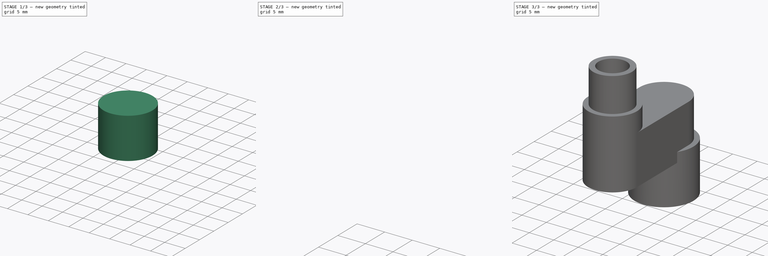
[diagram: build sequence overview — one tinted view per stage of 3, left to right]
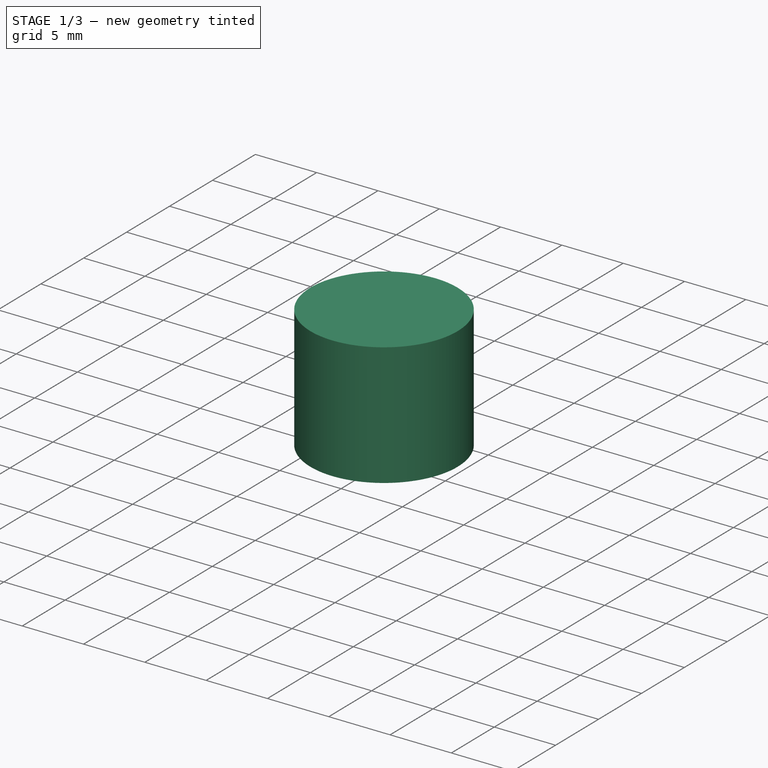
[diagram: stage 1 of 3 — iso view after this stage's code; geometry added in this stage tinted green]
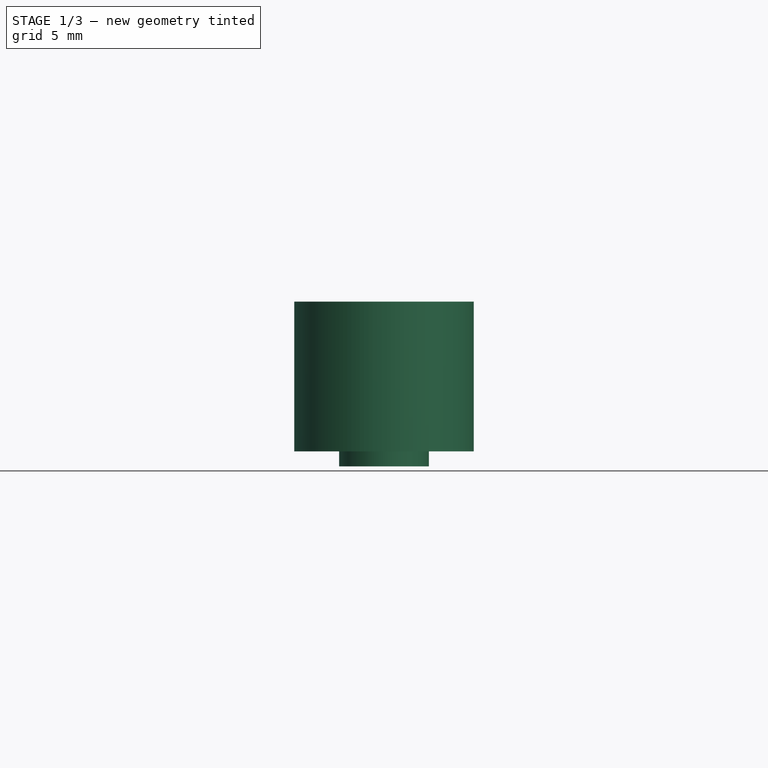
[diagram: stage 1 of 3 — front view after this stage's code; geometry added in this stage tinted green]
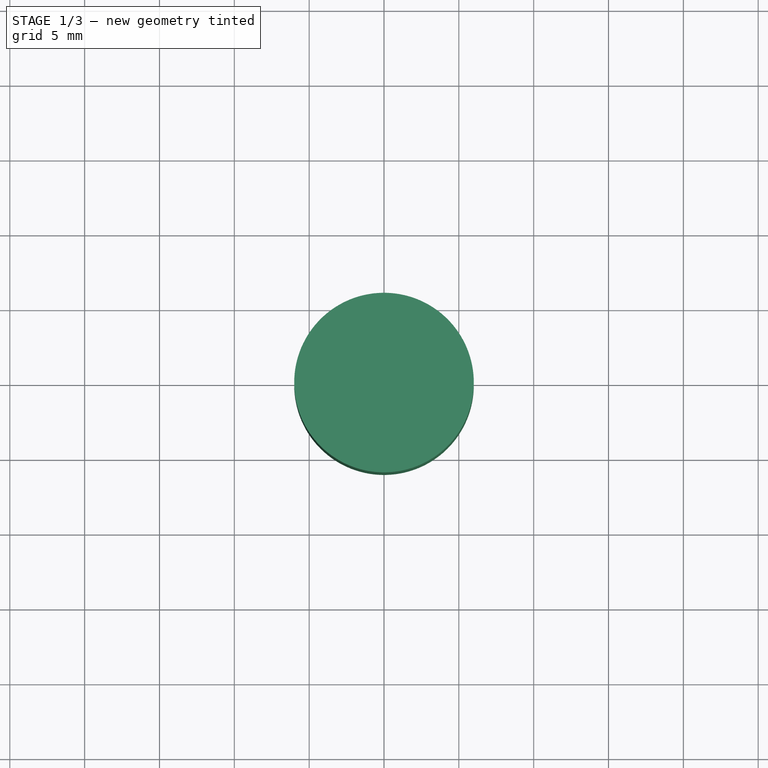
[diagram: stage 1 of 3 — top view after this stage's code; geometry added in this stage tinted green]
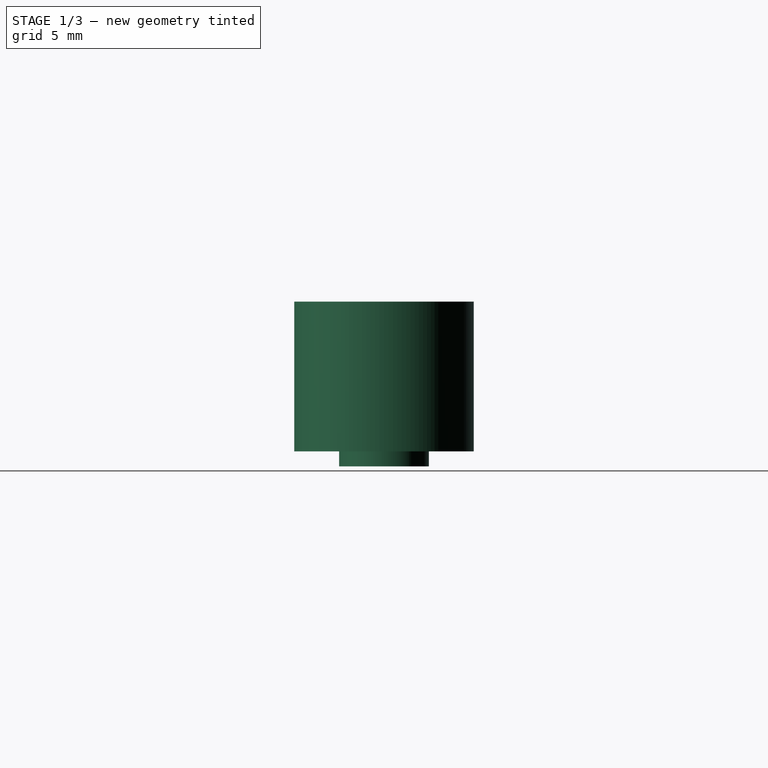
[diagram: stage 1 of 3 — right view after this stage's code; geometry added in this stage tinted green]
FCSTD DOCUMENT  (FreeCAD 0.19R)
Label: arm_essai_4
License: All rights reserved
LicenseURL: http://en.wikipedia.org/wiki/All_rights_reserved
objects: Part::Cylinder×2, Part::Cut×2, Part::Feature×1, Sketcher::SketchObject×1, PartDesign::Pad×1, PartDesign::PolarPattern×1, PartDesign::Body×1, Spreadsheet::Sheet×1, Part::MultiFuse×1
note: 11 computed .brp shape members not serialized (recipe doc carries the construction recipe); baked Part::Feature solids carry a one-line shape summary decoded from their .brp

FEATURE [PartDesign::Body] Body001  label="Body_etoire"
  Group = -> [Sketch003,Pad001,PolarPattern]
  Origin = -> Origin001
  Placement = pos=(-100,-35,32) rot=(0,0,1;0rad)
  Tip = -> PolarPattern
FEATURE [Spreadsheet::Sheet] Spreadsheet
  cells = A1=etoile_large; B1(etoile_large)=0.8; A2=etoile_haut; B2(etoile_haut)=8.5; A3=etoile_longueur; B3(etoile_longueur)=8
FEATURE [Part::Cylinder] Cylinder  label="Cylindre"
  Angle = 360
  AttacherType = Attacher::AttachEngine3D
  Height = 10
  Placement = pos=(-100,-35,32) rot=(0,0,1;0rad)
  Radius = 6
FEATURE [Part::Cylinder] Cylinder001  label="Cylindre_trou"
  Angle = 360
  AttacherType = Attacher::AttachEngine3D
  Height = 9
  Placement = pos=(-100,-35,31) rot=(0,0,1;0rad)
  Radius = 3
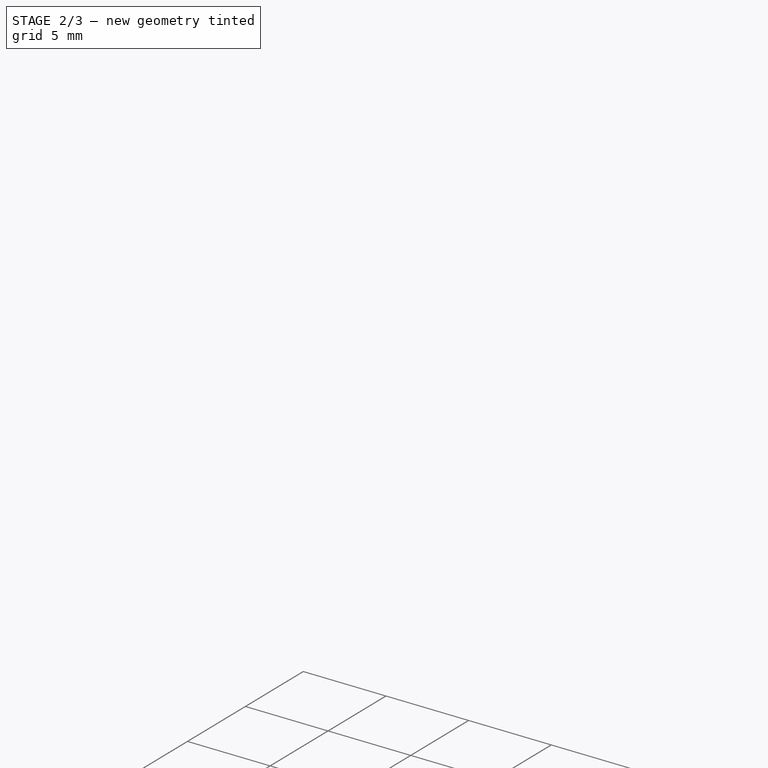
[diagram: stage 2 of 3 — iso view after this stage's code; geometry added in this stage tinted green]
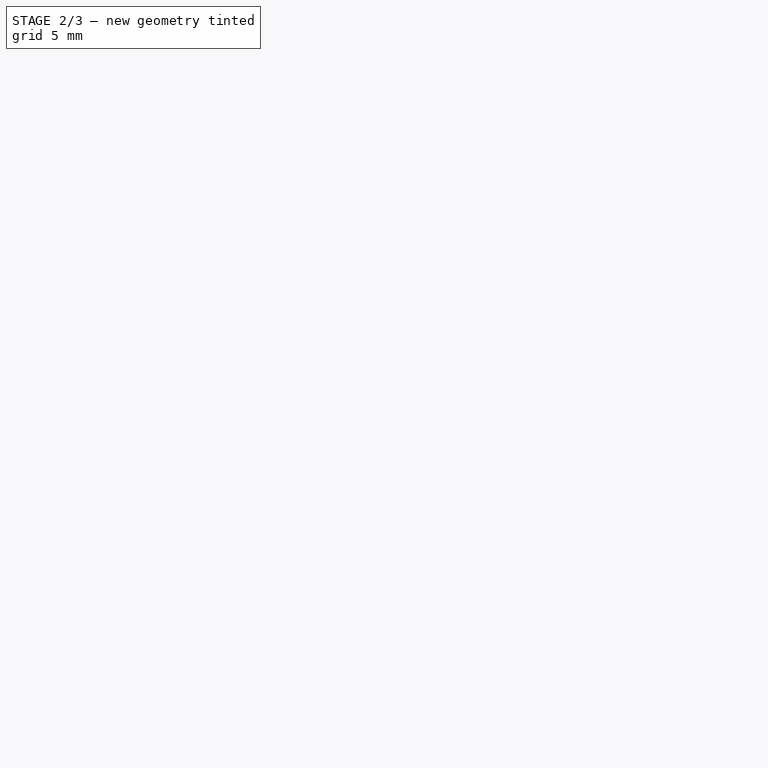
[diagram: stage 2 of 3 — front view after this stage's code; geometry added in this stage tinted green]
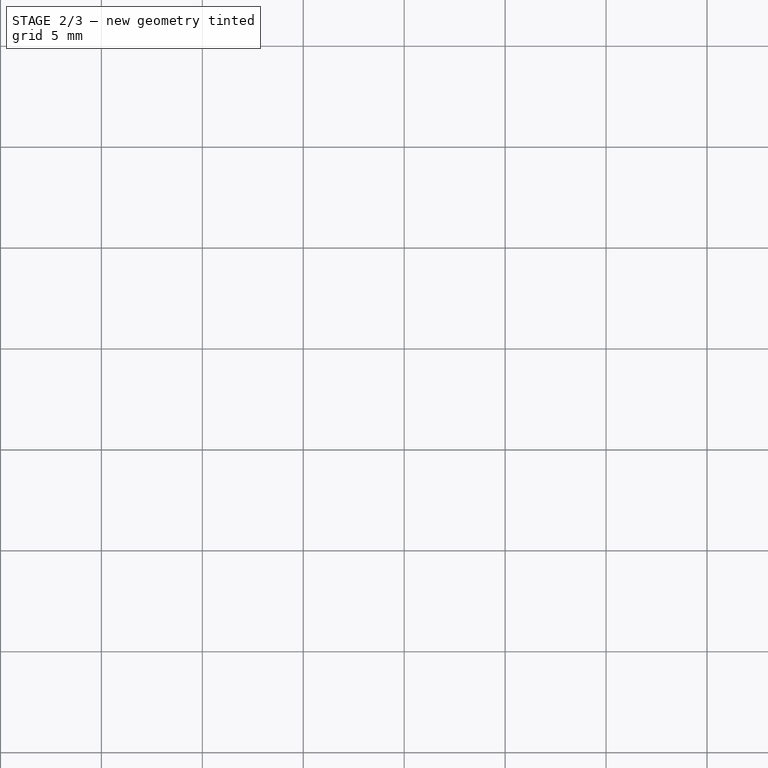
[diagram: stage 2 of 3 — top view after this stage's code; geometry added in this stage tinted green]
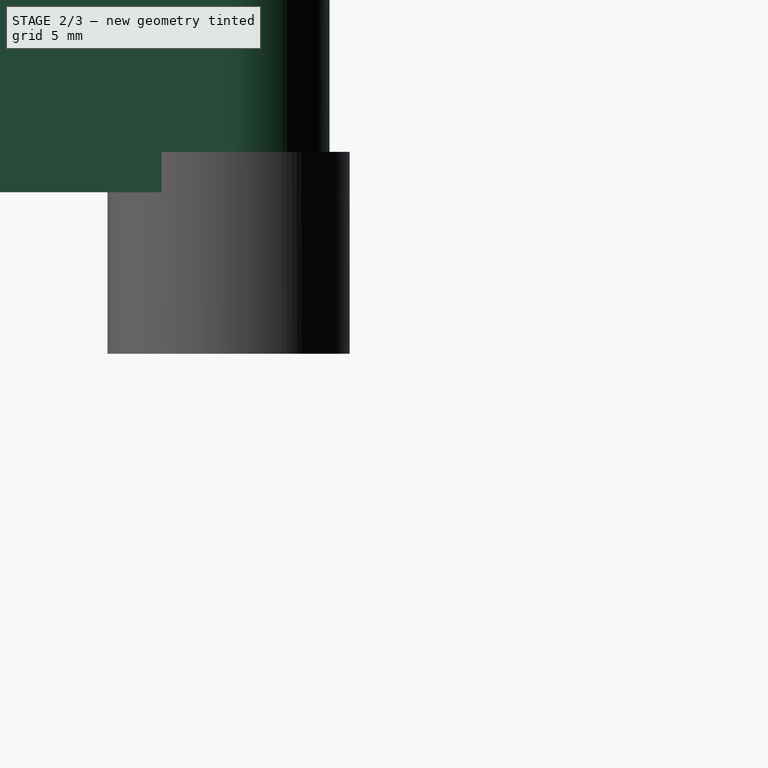
[diagram: stage 2 of 3 — right view after this stage's code; geometry added in this stage tinted green]
FEATURE [Part::Feature] Solid
  shape: bbox 10 x 25 x 29 mm, 1023 faces (baked)
FEATURE [Sketcher::SketchObject] Sketch003  label="Sketch_et"
  FullyConstrained = true
  MapMode = 5
  Support = -> [XY_Plane001]
  expr: Constraints[11] = Spreadsheet.etoile_large / 2
  expr: Constraints[10] = Spreadsheet.etoile_large / 2
  expr: Constraints[9] = Spreadsheet.etoile_longueur / 2
  expr: Constraints[8] = Spreadsheet.etoile_longueur / 2
  sketch-geometry (4):
    g0: LineSegment StartX=-4 StartY=0.4 StartZ=0 EndX=4 EndY=0.4 EndZ=0
    g1: LineSegment StartX=4 StartY=0.4 StartZ=0 EndX=4 EndY=-0.4 EndZ=0
    g2: LineSegment StartX=4 StartY=-0.4 StartZ=0 EndX=-4 EndY=-0.4 EndZ=0
    g3: LineSegment StartX=-4 StartY=-0.4 StartZ=0 EndX=-4 EndY=0.4 EndZ=0
  constraints (12):
    c: Coincident(g0,g1)
    c: Coincident(g1,g2)
    c: Coincident(g2,g3)
    c: Coincident(g3,g0)
    c: Horizontal(g0)
    c: Horizontal(g2)
    c: Vertical(g1)
    c: Vertical(g3)
    c: DistanceX(g0,g-1) = 4
    c: DistanceX(g-1,g0) = 4
    c: DistanceY(g-1,g0) = 0.4
    c: DistanceY(g1,g-1) = 0.4
FEATURE [PartDesign::Pad] Pad001
  Direction = (1,1,1)
  Length = 8.5
  Length2 = 100
  Profile = -> Sketch003
  Type = 0
  expr: Length = Spreadsheet.etoile_haut
FEATURE [Part::MultiFuse] Fusion
  Shapes = -> [Cylinder,Solid]
FEATURE [Part::Cut] Cut
  Base = -> Fusion
  Tool = -> Cylinder001
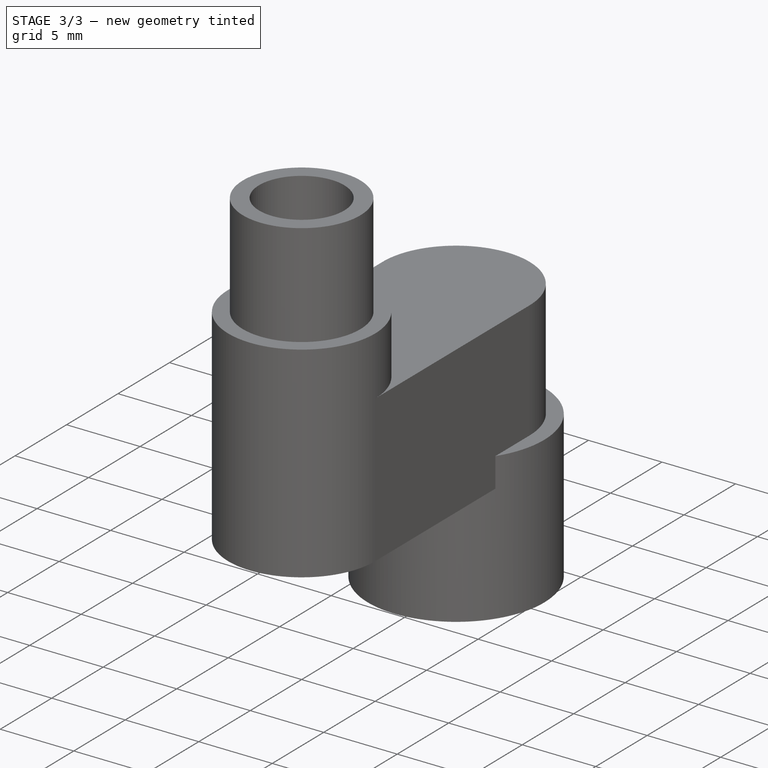
[diagram: stage 3 of 3 — iso view after this stage's code; geometry added in this stage tinted green]
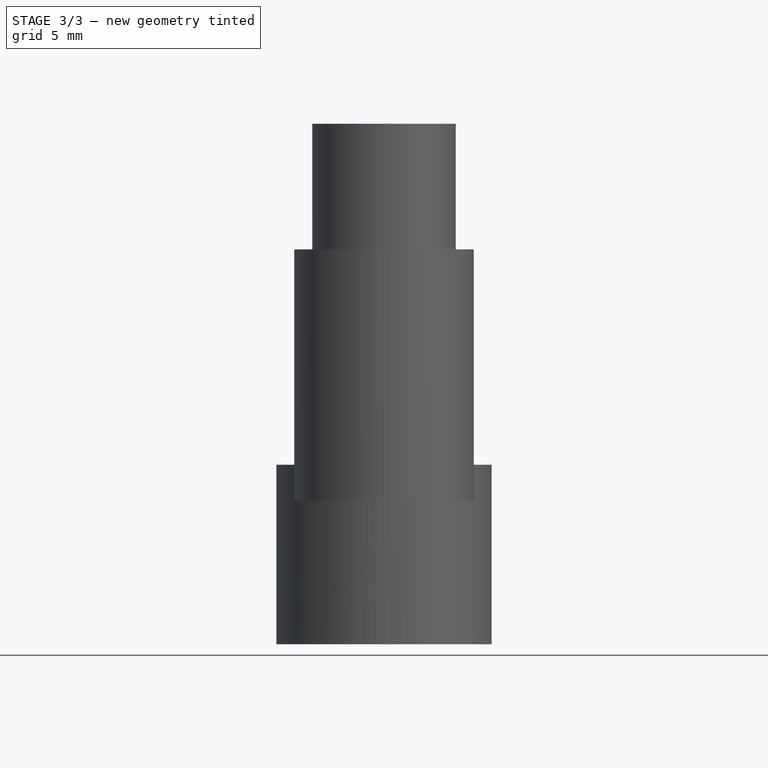
[diagram: stage 3 of 3 — front view after this stage's code; geometry added in this stage tinted green]
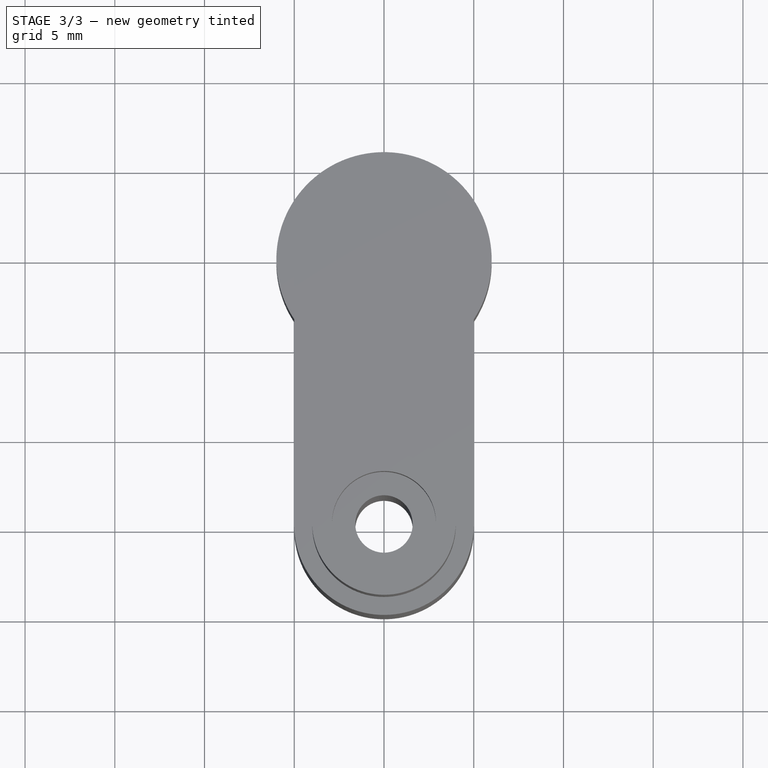
[diagram: stage 3 of 3 — top view after this stage's code; geometry added in this stage tinted green]
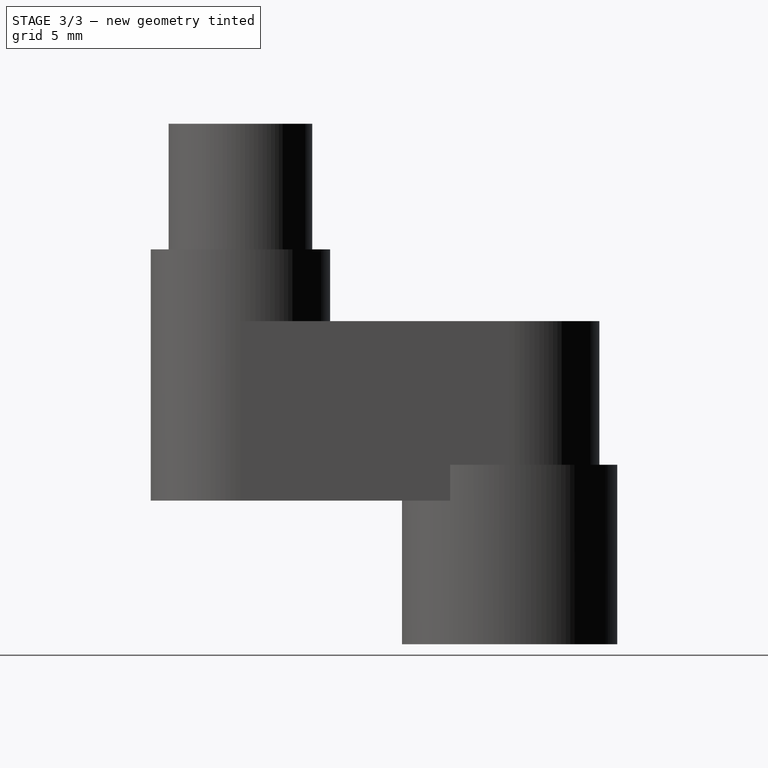
[diagram: stage 3 of 3 — right view after this stage's code; geometry added in this stage tinted green]
FEATURE [PartDesign::PolarPattern] PolarPattern
  Angle = 360
  Axis = -> Sketch003 [N_Axis]
  BaseFeature = -> Pad001
  Occurrences = 14
  Originals = -> [Pad001]
FEATURE [Part::Cut] Cut001
  Base = -> Cut
  Tool = -> Body001
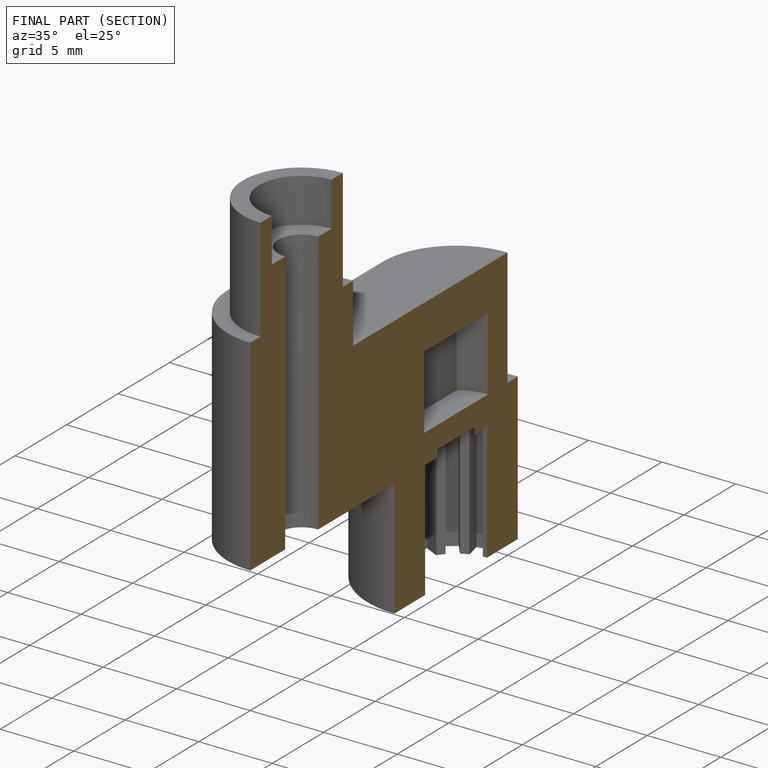
[diagram: finished part — half-section view (interior)]
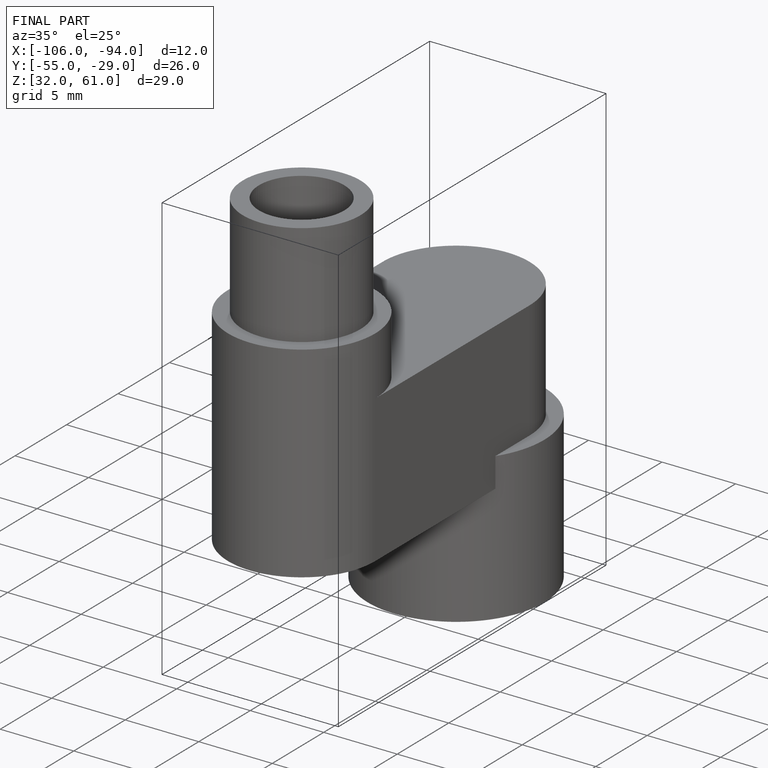
[diagram: finished part — iso view with bounding-box wireframe]
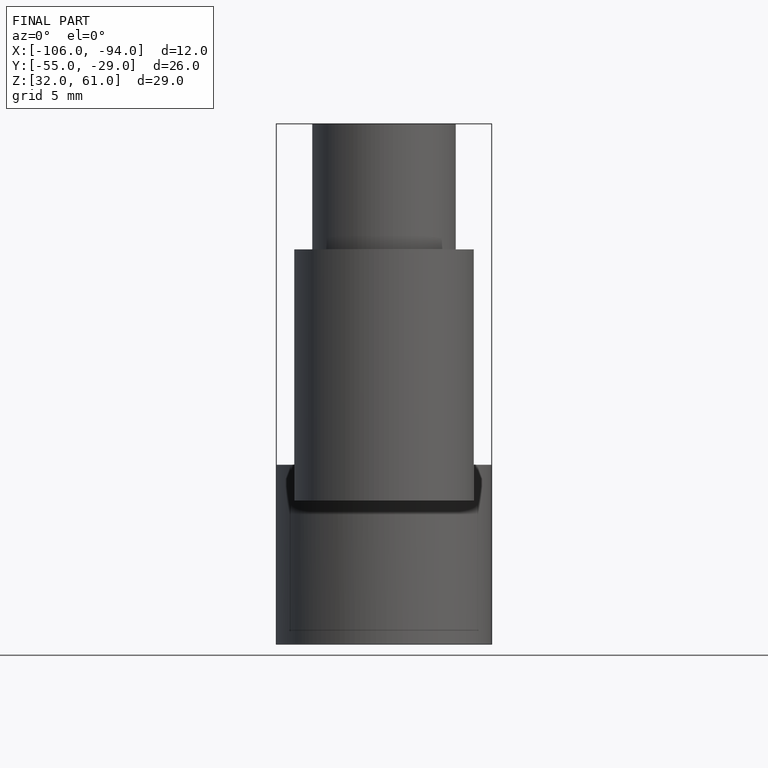
[diagram: finished part — front view with bounding-box wireframe]
